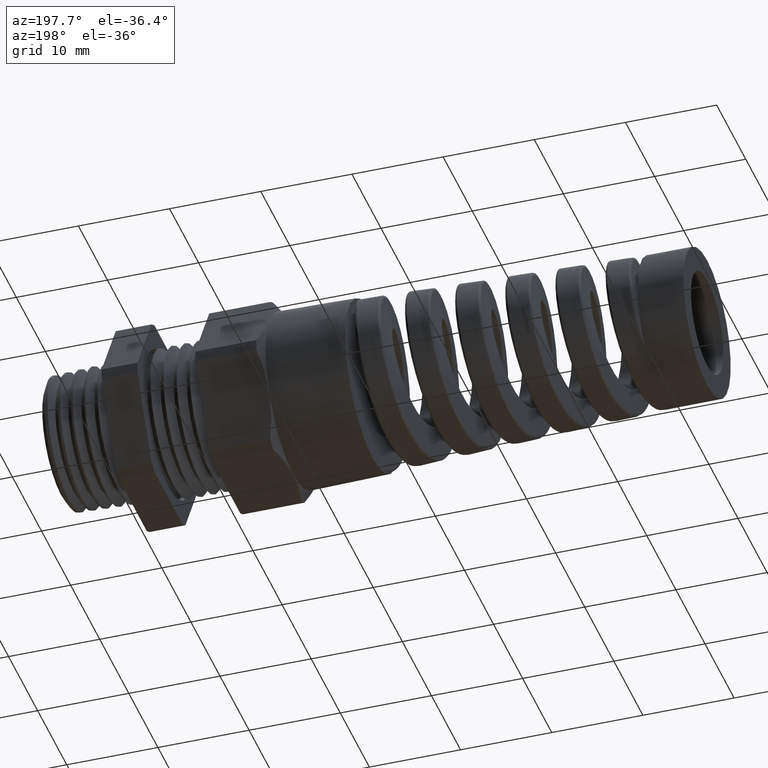
[diagram: clean part render]
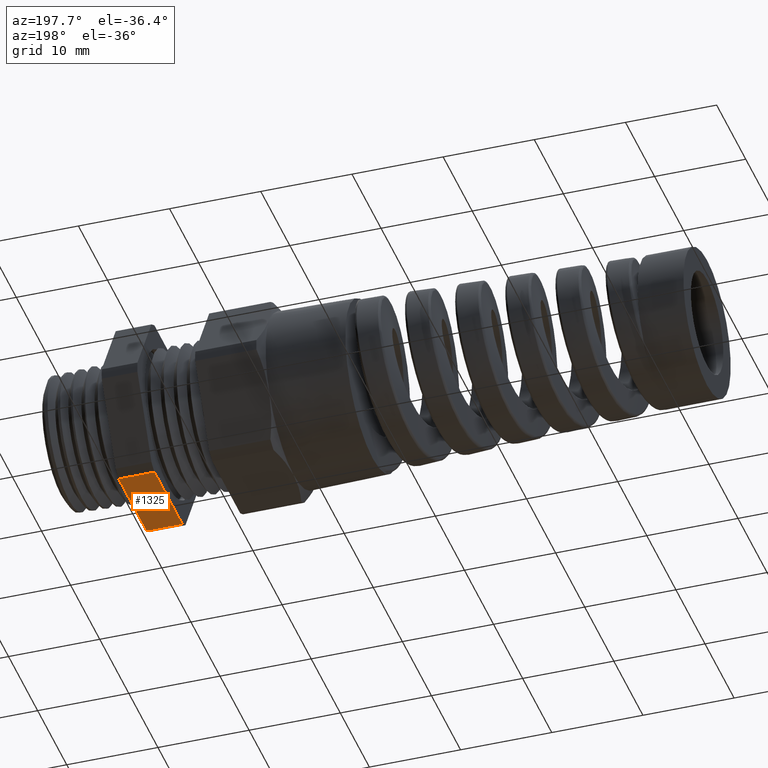
[diagram: same view with one face highlighted and labeled with its STEP entity id]
A machine part, auxiliary view. The second image highlights one B-rep face of the part: STEP entity #1325.
In plain terms, the highlighted planar face has unit normal (0, 0, -1).
Its self-contained STEP definition (entity closure, byte-faithful):
#191 = VERTEX_POINT ( 'NONE', #6458 ) ;
#770 = VERTEX_POINT ( 'NONE', #7332 ) ;
#774 = VERTEX_POINT ( 'NONE', #7320 ) ;
#776 = EDGE_CURVE ( 'NONE', #770, #5831, #7319, .T. ) ;
#780 = EDGE_CURVE ( 'NONE', #774, #191, #7373, .T. ) ;
#1140 = EDGE_CURVE ( 'NONE', #774, #770, #2328, .T. ) ;
#1323 = ORIENTED_EDGE ( 'NONE', *, *, #1140, .T. ) ;
#1325 = ADVANCED_FACE ( 'NONE', ( #2442 ), #2441, .T. ) ;
#1327 = EDGE_LOOP ( 'NONE', ( #1323, #1328, #1330, #1332 ) ) ;
#1328 = ORIENTED_EDGE ( 'NONE', *, *, #776, .T. ) ;
#1330 = ORIENTED_EDGE ( 'NONE', *, *, #6162, .F. ) ;
#1332 = ORIENTED_EDGE ( 'NONE', *, *, #780, .F. ) ;
#2327 = CARTESIAN_POINT ( 'NONE',  ( -0.1542288557213930500, 0.3180000000000000000, -0.3749999999999999400 ) ) ;
#2328 = LINE ( 'NONE', #2327, #2388 ) ;
#2387 = DIRECTION ( 'NONE',  ( 0.0000000000000000000, 1.000000000000000000, 0.0000000000000000000 ) ) ;
#2388 = VECTOR ( 'NONE', #2387, 39.37007874015748100 ) ;
#2437 = DIRECTION ( 'NONE',  ( -1.000000000000000000, 0.0000000000000000000, 0.0000000000000000000 ) ) ;
#2438 = DIRECTION ( 'NONE',  ( 0.0000000000000000000, 0.0000000000000000000, -1.000000000000000000 ) ) ;
#2439 = CARTESIAN_POINT ( 'NONE',  ( -1.893568786317334100, -0.1891428031937775500, -0.3749999999999999400 ) ) ;
#2440 = AXIS2_PLACEMENT_3D ( 'NONE', #2439, #2438, #2437 ) ;
#2441 = PLANE ( 'NONE',  #2440 ) ;
#2442 = FACE_OUTER_BOUND ( 'NONE', #1327, .T. ) ;
#4251 = CARTESIAN_POINT ( 'NONE',  ( 0.0000000000000000000, 0.1891428031937775500, -0.3749999999999999400 ) ) ;
#4739 = DIRECTION ( 'NONE',  ( 0.0000000000000000000, 1.000000000000000000, 0.0000000000000000000 ) ) ;
#4740 = VECTOR ( 'NONE', #4739, 39.37007874015748100 ) ;
#4741 = CARTESIAN_POINT ( 'NONE',  ( 0.0000000000000000000, -0.1891428031937775500, -0.3749999999999999400 ) ) ;
#4742 = LINE ( 'NONE', #4741, #4740 ) ;
#5831 = VERTEX_POINT ( 'NONE', #4251 ) ;
#6162 = EDGE_CURVE ( 'NONE', #191, #5831, #4742, .T. ) ;
#6458 = CARTESIAN_POINT ( 'NONE',  ( 0.0000000000000000000, -0.1891428031937775800, -0.3749999999999998900 ) ) ;
#7316 = DIRECTION ( 'NONE',  ( 1.000000000000000000, 0.0000000000000000000, 0.0000000000000000000 ) ) ;
#7317 = VECTOR ( 'NONE', #7316, 39.37007874015748100 ) ;
#7318 = CARTESIAN_POINT ( 'NONE',  ( -1.893568786317334100, 0.1891428031937775500, -0.3749999999999999400 ) ) ;
#7319 = LINE ( 'NONE', #7318, #7317 ) ;
#7320 = CARTESIAN_POINT ( 'NONE',  ( -0.1542288557213930500, -0.1891428031937775500, -0.3749999999999999400 ) ) ;
#7332 = CARTESIAN_POINT ( 'NONE',  ( -0.1542288557213930500, 0.1891428031937775500, -0.3749999999999999400 ) ) ;
#7370 = DIRECTION ( 'NONE',  ( 1.000000000000000000, 0.0000000000000000000, 0.0000000000000000000 ) ) ;
#7371 = VECTOR ( 'NONE', #7370, 39.37007874015748100 ) ;
#7372 = CARTESIAN_POINT ( 'NONE',  ( -1.893568786317334100, -0.1891428031937775800, -0.3749999999999998900 ) ) ;
#7373 = LINE ( 'NONE', #7372, #7371 ) ;